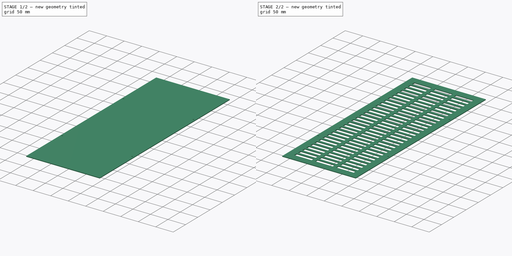
[diagram: build sequence overview — one tinted view per stage of 2, left to right]
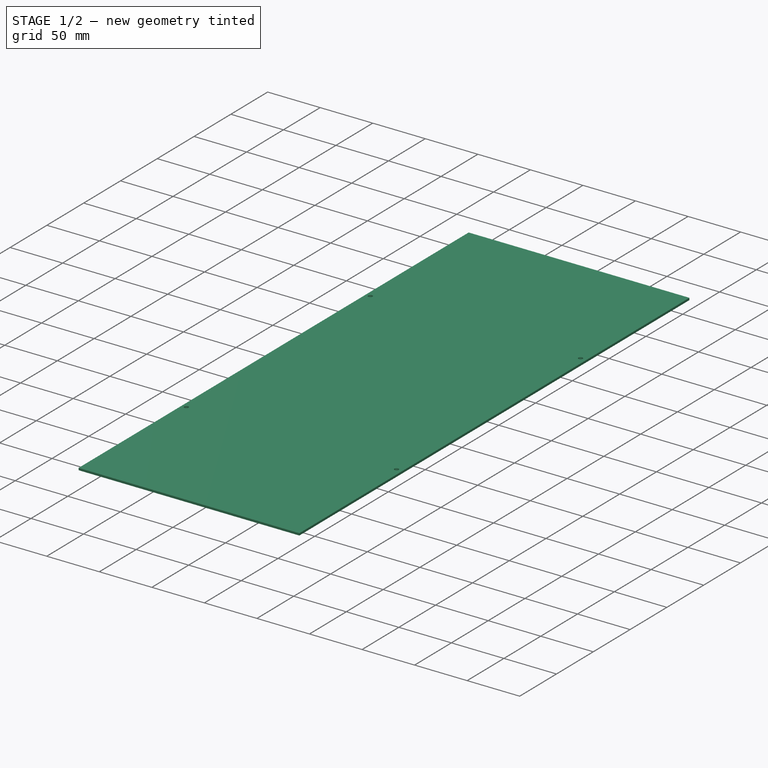
[diagram: stage 1 of 2 — iso view after this stage's code; geometry added in this stage tinted green]
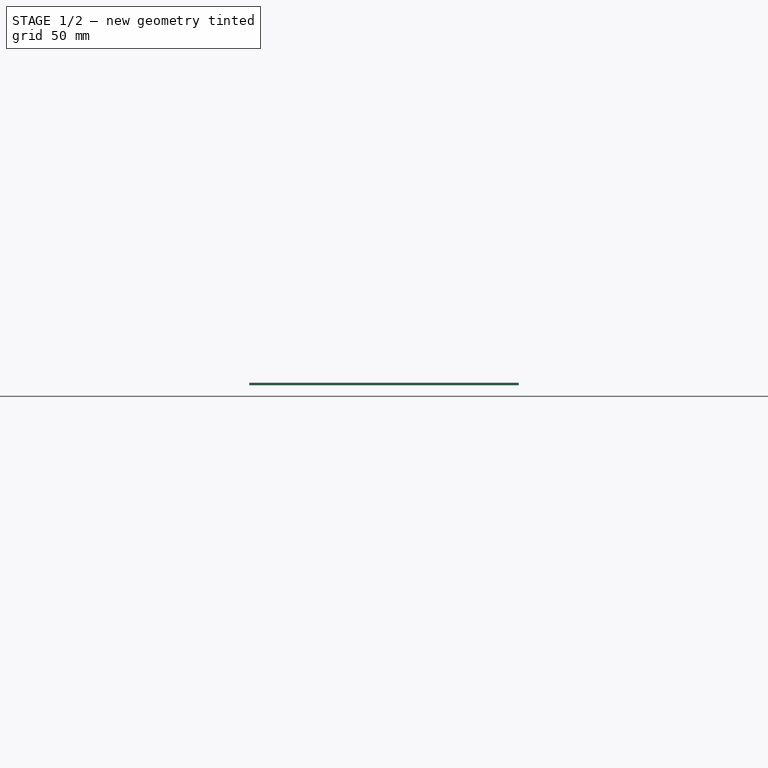
[diagram: stage 1 of 2 — front view after this stage's code; geometry added in this stage tinted green]
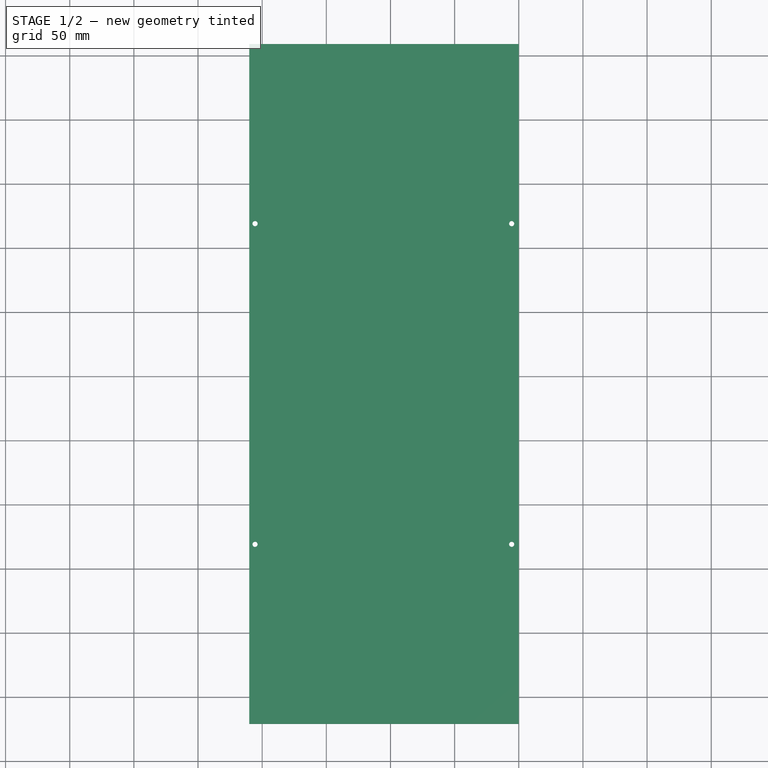
[diagram: stage 1 of 2 — top view after this stage's code; geometry added in this stage tinted green]
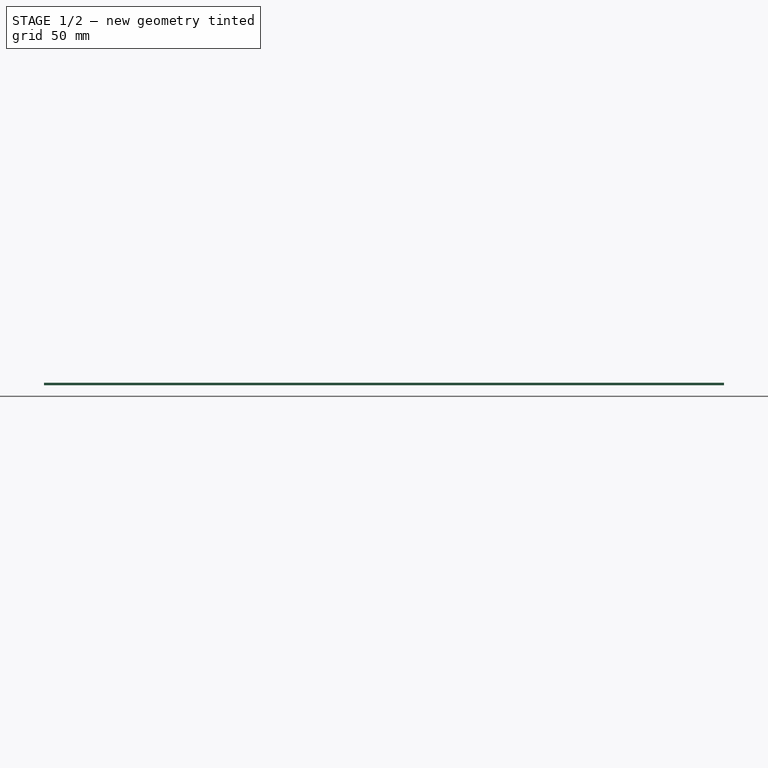
[diagram: stage 1 of 2 — right view after this stage's code; geometry added in this stage tinted green]
FCSTD DOCUMENT  (FreeCAD 0.16R6698 (Git))
Label: Back_Bended_Coating
License: All rights reserved
LicenseURL: http://en.wikipedia.org/wiki/All_rights_reserved
objects: Sketcher::SketchObject×3, PartDesign::Pocket×2, PartDesign::Pad×1, PartDesign::LinearPattern×1
note: 10 computed .brp shape members not serialized (recipe doc carries the construction recipe); baked Part::Feature solids carry a one-line shape summary decoded from their .brp

FEATURE [Sketcher::SketchObject] Sketch
  sketch-geometry (4):
    g0: LineSegment StartX=-110.054 StartY=259.119 StartZ=0 EndX=99.9456 EndY=259.119 EndZ=0
    g1: LineSegment StartX=99.9456 StartY=259.119 StartZ=0 EndX=99.9456 EndY=-270.881 EndZ=0
    g2: LineSegment StartX=99.9456 StartY=-270.881 StartZ=0 EndX=-110.054 EndY=-270.881 EndZ=0
    g3: LineSegment StartX=-110.054 StartY=-270.881 StartZ=0 EndX=-110.054 EndY=259.119 EndZ=0
  constraints (10):
    c: Coincident(g0,g1)
    c: Coincident(g1,g2)
    c: Coincident(g2,g3)
    c: Coincident(g3,g0)
    c: Horizontal(g0)
    c: Horizontal(g2)
    c: Vertical(g1)
    c: Vertical(g3)
    c: DistanceX(g0,g0) = 210
    c: DistanceY(g3,g3) = 530
FEATURE [PartDesign::Pad] Pad
  Length = 2
  Length2 = 100
  Sketch = -> Sketch
  Type = 0
FEATURE [Sketcher::SketchObject] Sketch001
  ExternalGeometry = -> [Pad]
  Placement = pos=(0,0,2) rot=(0,0,1;0rad)
  Support = -> Pad [Face6]
  sketch-geometry (4):
    g0: Circle CenterX=-105.554 CenterY=119.119 CenterZ=0 NormalX=0 NormalY=0 NormalZ=1 Radius=2
    g1: Circle CenterX=-105.554 CenterY=-130.881 CenterZ=0 NormalX=0 NormalY=0 NormalZ=1 Radius=2
    g2: Circle CenterX=94.4456 CenterY=-130.881 CenterZ=0 NormalX=0 NormalY=0 NormalZ=1 Radius=2
    g3: Circle CenterX=94.4456 CenterY=119.119 CenterZ=0 NormalX=0 NormalY=0 NormalZ=1 Radius=2
  constraints (12):
    c: Radius(g3) = 2
    c: Equal(g3,g0)
    c: Equal(g3,g1)
    c: Equal(g3,g2)
    c: DistanceX(g0,g1) = 0
    c: DistanceY(g1,g0) = 250
    c: DistanceY(g2,g3) = 250
    c: DistanceX(g2,g3) = 0
    c: DistanceY(g0,g-4) = 140
    c: DistanceY(g3,g-3) = 140
    c: DistanceX(g3,g-3) = 5.5
    c: DistanceX(g-4,g0) = 4.5
FEATURE [PartDesign::Pocket] Pocket
  Length = 5
  Sketch = -> Sketch001
  Type = 0
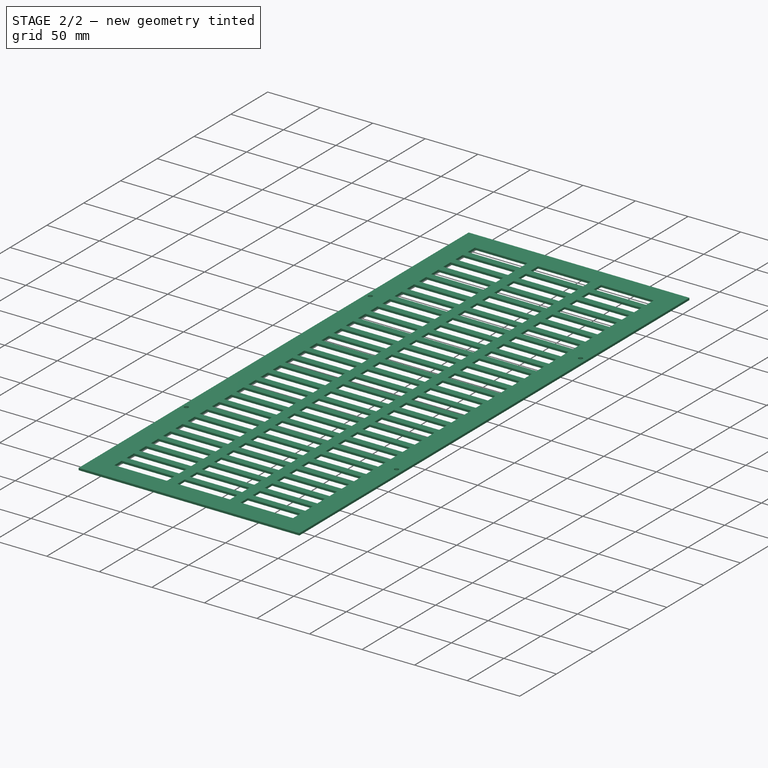
[diagram: stage 2 of 2 — iso view after this stage's code; geometry added in this stage tinted green]
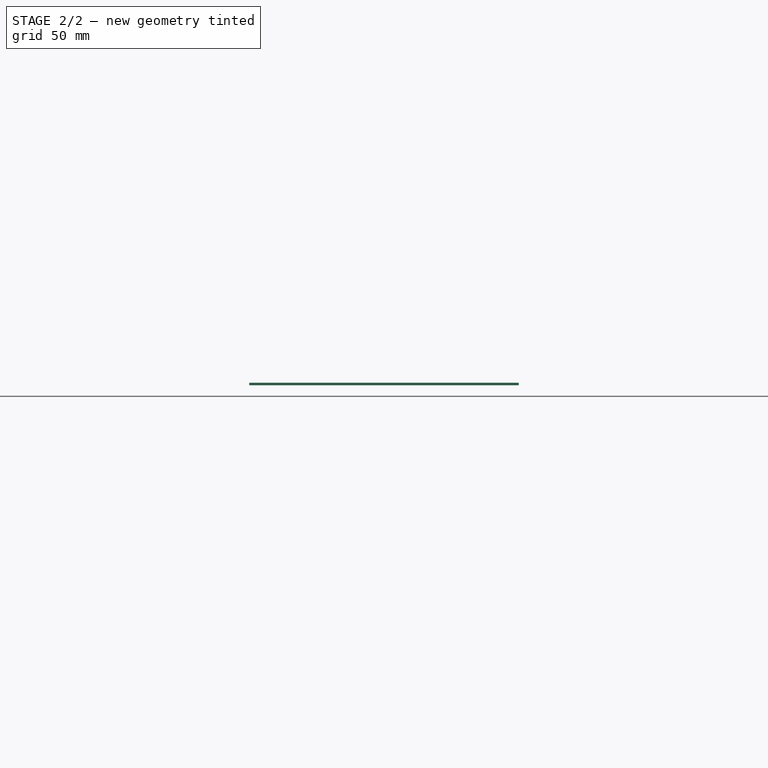
[diagram: stage 2 of 2 — front view after this stage's code; geometry added in this stage tinted green]
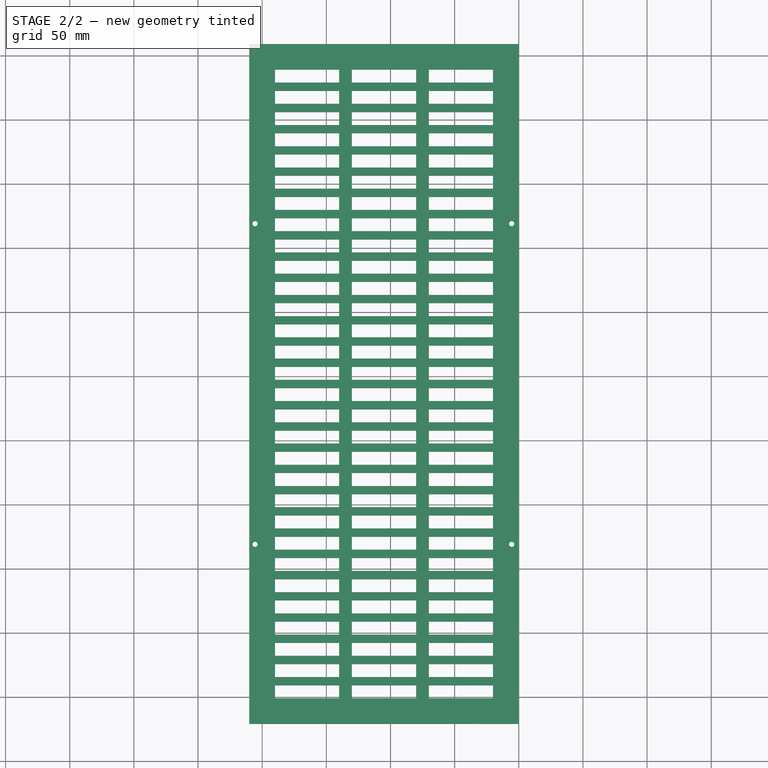
[diagram: stage 2 of 2 — top view after this stage's code; geometry added in this stage tinted green]
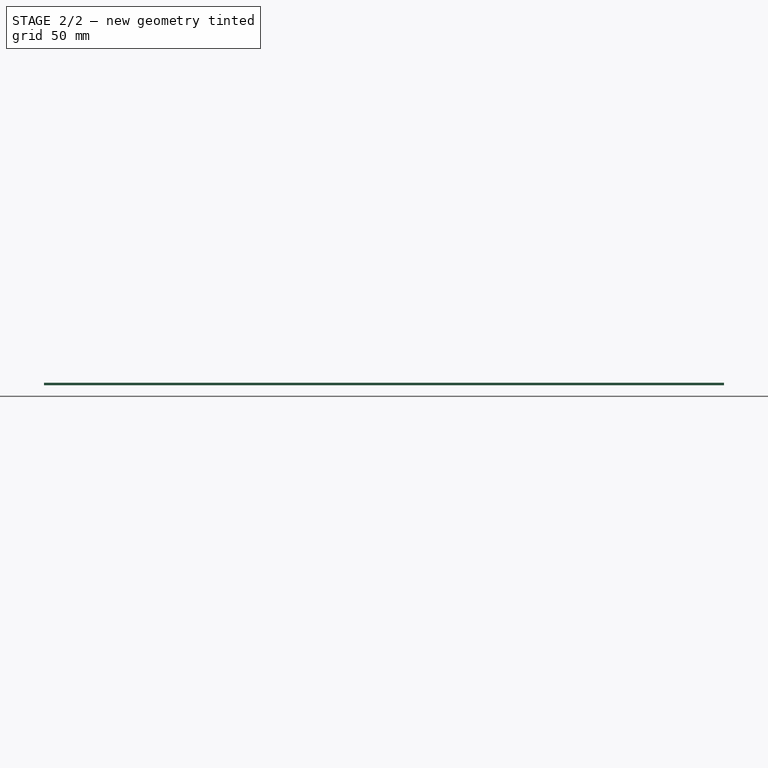
[diagram: stage 2 of 2 — right view after this stage's code; geometry added in this stage tinted green]
FEATURE [Sketcher::SketchObject] Sketch002
  ExternalGeometry = -> [Pocket]
  Placement = pos=(0,0,2) rot=(0,0,1;0rad)
  Support = -> Pocket [Face5]
  sketch-geometry (12):
    g0: LineSegment StartX=-90.0544 StartY=239.119 StartZ=0 EndX=-40.0544 EndY=239.119 EndZ=0
    g1: LineSegment StartX=79.9456 StartY=239.119 StartZ=0 EndX=79.9456 EndY=229.119 EndZ=0
    g2: LineSegment StartX=79.9456 StartY=229.119 StartZ=0 EndX=29.9456 EndY=229.119 EndZ=0
    g3: LineSegment StartX=-90.0544 StartY=229.119 StartZ=0 EndX=-90.0544 EndY=239.119 EndZ=0
    g4: LineSegment StartX=-40.0544 StartY=239.119 StartZ=0 EndX=-40.0544 EndY=229.119 EndZ=0
    g5: LineSegment StartX=-30.0544 StartY=239.119 StartZ=0 EndX=-30.0544 EndY=229.119 EndZ=0
    g6: LineSegment StartX=19.9456 StartY=239.119 StartZ=0 EndX=19.9456 EndY=229.119 EndZ=0
    g7: LineSegment StartX=29.9456 StartY=239.119 StartZ=0 EndX=29.9456 EndY=229.119 EndZ=0
    g8: LineSegment StartX=-30.0544 StartY=239.119 StartZ=0 EndX=19.9456 EndY=239.119 EndZ=0
    g9: LineSegment StartX=-40.0544 StartY=229.119 StartZ=0 EndX=-90.0544 EndY=229.119 EndZ=0
    g10: LineSegment StartX=19.9456 StartY=229.119 StartZ=0 EndX=-30.0544 EndY=229.119 EndZ=0
    g11: LineSegment StartX=29.9456 StartY=239.119 StartZ=0 EndX=79.9456 EndY=239.119 EndZ=0
  constraints (34):
    c: Coincident(g11,g1)
    c: Coincident(g1,g2)
    c: Coincident(g9,g3)
    c: Coincident(g3,g0)
    c: Horizontal(g0)
    c: Horizontal(g2)
    c: Vertical(g1)
    c: Vertical(g3)
    c: DistanceX(g-4,g0) = 20
    c: DistanceX(g11,g-3) = 20
    c: DistanceY(g0,g-4) = 20
    c: DistanceY(g3,g3) = 10
    c: Vertical(g4)
    c: Vertical(g5)
    c: PointOnObject(g6,g0)
    c: Vertical(g6)
    c: PointOnObject(g7,g0)
    c: Vertical(g7)
    c: Coincident(g0,g4)
    c: Coincident(g8,g5)
    c: Tangent(g0,g8)
    c: Coincident(g10,g5)
    c: Coincident(g9,g4)
    c: Tangent(g2,g9)
    c: Coincident(g2,g7)
    c: Coincident(g10,g6)
    c: Tangent(g2,g10)
    c: PointOnObject(g8,g6)
    c: PointOnObject(g11,g7)
    c: Tangent(g8,g11)
    c: DistanceX(g6,g7) = 10
    c: DistanceX(g0,g5) = 10
    c: DistanceX(g0,g0) = 50
    c: DistanceX(g8,g8) = 50
FEATURE [PartDesign::Pocket] Pocket001
  Length = 5
  Sketch = -> Sketch002
  Type = 0
FEATURE [PartDesign::LinearPattern] LinearPattern
  Direction = -> Sketch002 [V_Axis]
  Length = 480
  Occurrences = 30
  Originals = -> [Pocket001]
  Reversed = true
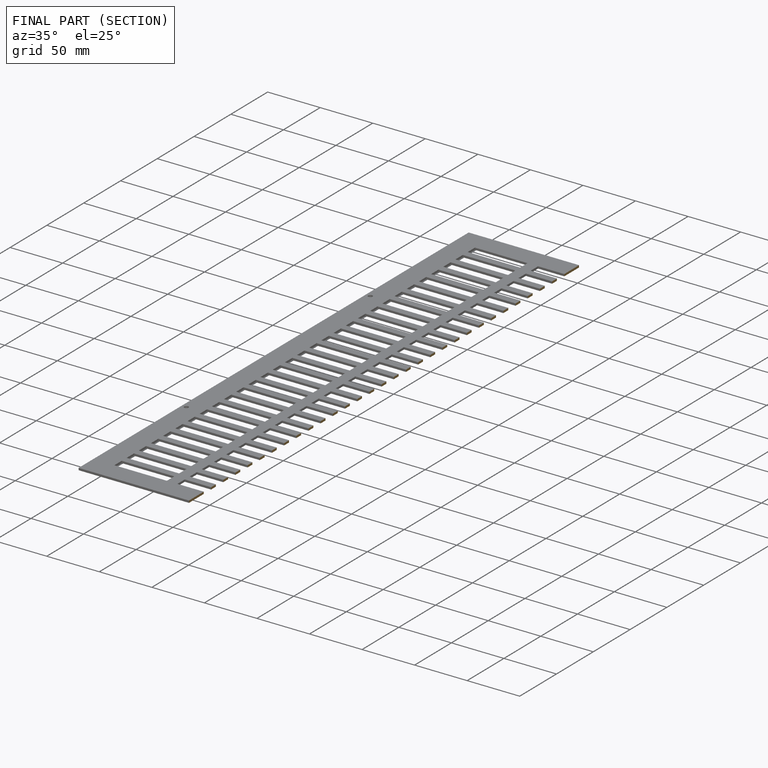
[diagram: finished part — half-section view (interior)]
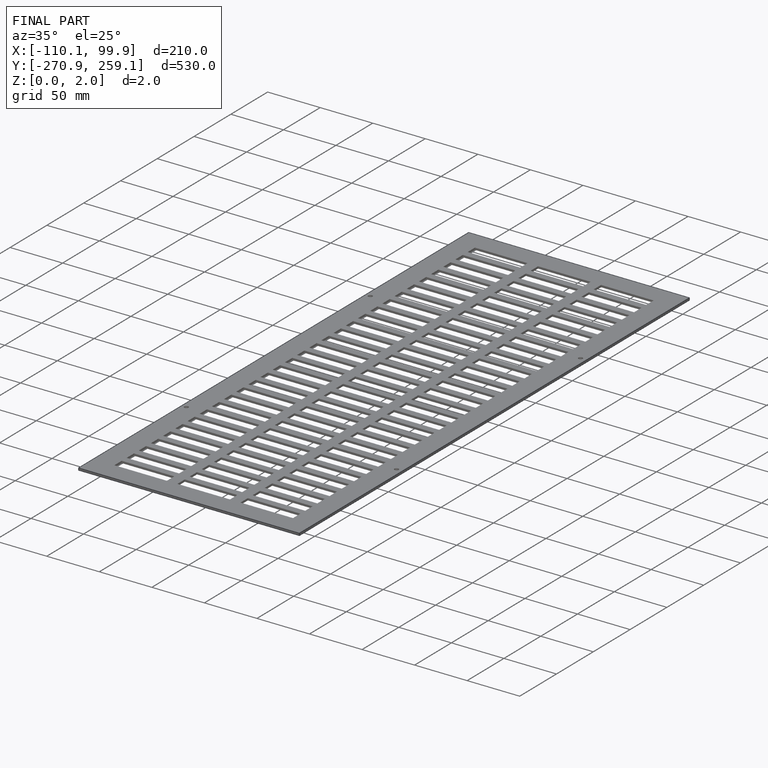
[diagram: finished part — iso view with bounding-box wireframe]
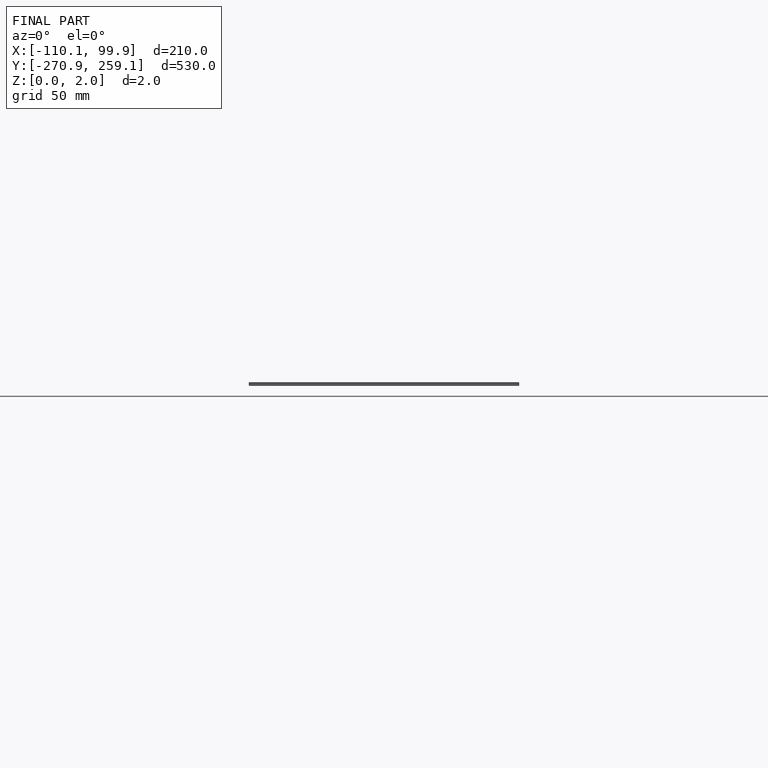
[diagram: finished part — front view with bounding-box wireframe]
